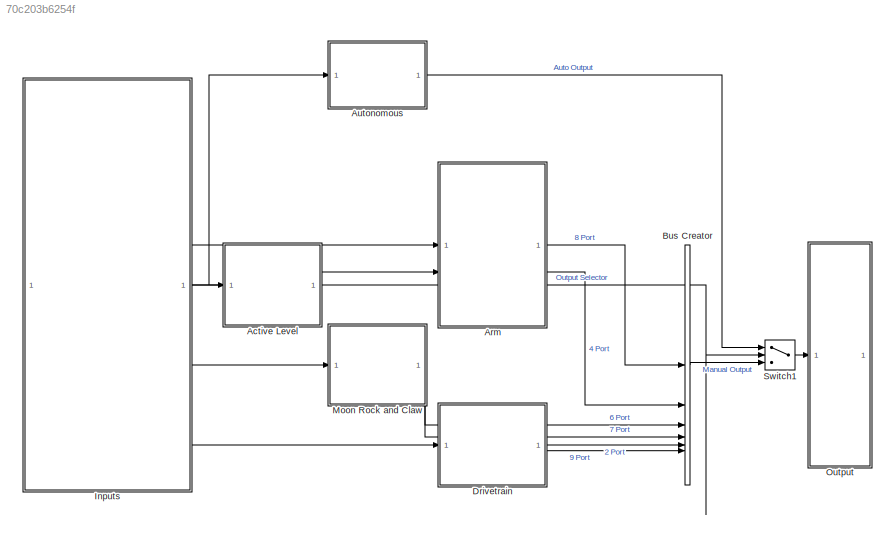
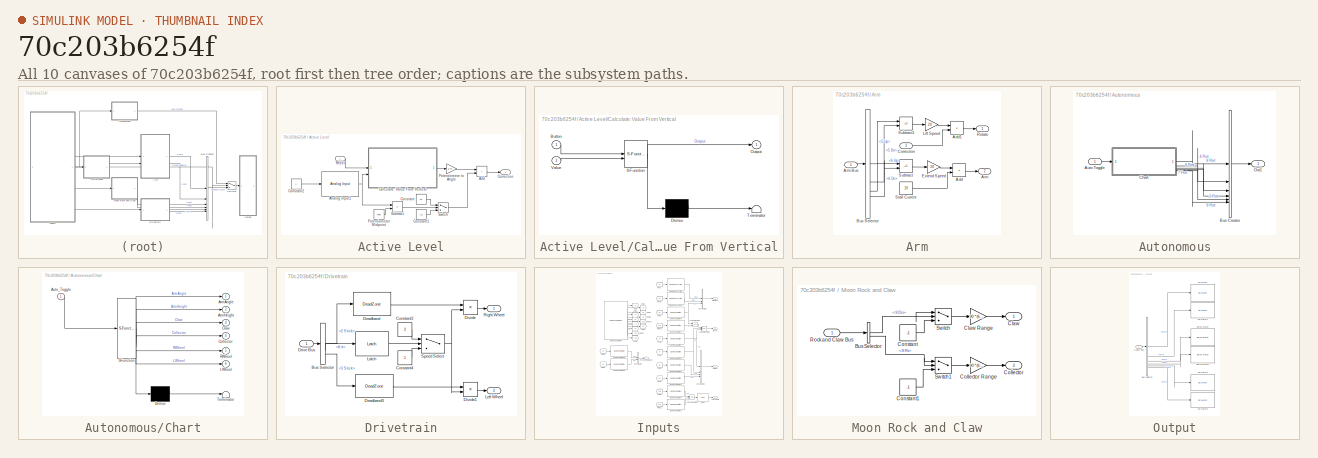
[diagram: thumbnail index - all 10 canvases of the model, root first then tree order]
MODEL slx_70c203b6254f
KIND model
CONFIG AbsTol = auto
CONFIG EnableMultiTasking = off
CONFIG FixedStep = auto
CONFIG MaxStep = auto
CONFIG MinStep = auto
CONFIG RelTol = 1e-3
CONFIG SampleTimeConstraint = Unconstrained
CONFIG SolverName = VariableStepAuto
CONFIG StartTime = 0.0
CONFIG StopTime = 10.0
BLOCK [SubSystem] Active Level
BLOCK [Sum] Active Level/Add
  IconShape = rectangular
BLOCK [Reference] Active Level/Analog Input1  REF=vexarmcortexlib/Sensors/Analog Input
  SourceBlock = vexarmcortexlib/Sensors/Analog Input
  SourceType = Analog Input
BLOCK [SubSystem] Active Level/Calculate: Value From Vertical
  ErrorFcn = Stateflow.Translate.translate
  PermitHierarchicalResolution = ExplicitOnly
  SFBlockType = Chart
  TreatAsAtomicUnit = on
BLOCK [Demux] Active Level/Calculate: Value From Vertical/ Demux 
  Outputs = 1
BLOCK [S-Function] Active Level/Calculate: Value From Vertical/ SFunction 
  EnableBusSupport = on
  FunctionName = sf_sfun
  PortCounts = [2 2]
  SFcnIsStateOwnerBlock = off
  SFunctionDeploymentMode = off
  Tag = Stateflow S-Function 1
BLOCK [Terminator] Active Level/Calculate: Value From Vertical/ Terminator 
BLOCK [Inport] Active Level/Calculate: Value From Vertical/Button
BLOCK [Outport] Active Level/Calculate: Value From Vertical/Output
BLOCK [Inport] Active Level/Calculate: Value From Vertical/Value
  Port = 2
BLOCK [Constant] Active Level/Constant
  Value = 10
BLOCK [Constant] Active Level/Constant1
  Value = -10
BLOCK [Constant] Active Level/Constant2
BLOCK [Outport] Active Level/Correction
BLOCK [Gain] Active Level/Potentiomere to Angle
  Gain = 3/74
BLOCK [Constant] Active Level/Potentiometer Midpoint
  Value = 7400
BLOCK [Inport] Active Level/Reset
BLOCK [Sum] Active Level/Subtract
  IconShape = rectangular
  Inputs = +-
BLOCK [Switch] Active Level/Switch
  Criteria = u2 > Threshold
  InputSameDT = off
  SaturateOnIntegerOverflow = off
BLOCK [SubSystem] Arm
BLOCK [Sum] Arm/Add
  IconShape = rectangular
BLOCK [Sum] Arm/Add1
  IconShape = rectangular
BLOCK [Outport] Arm/Arm
  Port = 2
BLOCK [Inport] Arm/Arm Bus
BLOCK [BusSelector] Arm/Bus Selector
  OutputSignals = 5 Up,5 Dn,6 Up,6 Dn
BLOCK [Inport] Arm/Correction
  Port = 2
BLOCK [Gain] Arm/Extend Speed
  Gain = 20
BLOCK [Gain] Arm/Lift Speed
  Gain = 20
BLOCK [Outport] Arm/Rotate
BLOCK [Constant] Arm/Stall Current
  Value = 10
BLOCK [Sum] Arm/Subtract
  IconShape = rectangular
  Inputs = +-
BLOCK [Sum] Arm/Subtract1
  IconShape = rectangular
  Inputs = +-
BLOCK [SubSystem] Autonomous
BLOCK [Inport] Autonomous/Auto Toggle
BLOCK [BusCreator] Autonomous/Bus Creator
  DisplayOption = bar
  InheritFromInputs = on
  Inputs = 6
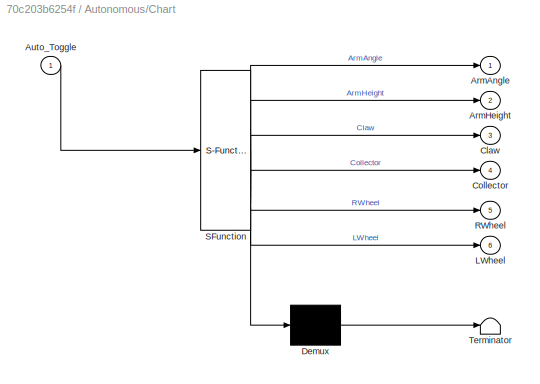
BLOCK [SubSystem] Autonomous/Chart
  ErrorFcn = Stateflow.Translate.translate
  PermitHierarchicalResolution = ExplicitOnly
  SFBlockType = Chart
  TreatAsAtomicUnit = on
BLOCK [Demux] Autonomous/Chart/ Demux 
  Outputs = 1
BLOCK [S-Function] Autonomous/Chart/ SFunction 
  EnableBusSupport = on
  FunctionName = sf_sfun
  PortCounts = [1 7]
  SFcnIsStateOwnerBlock = off
  SFunctionDeploymentMode = off
  Tag = Stateflow S-Function 3
BLOCK [Terminator] Autonomous/Chart/ Terminator 
BLOCK [Outport] Autonomous/Chart/ArmAngle
BLOCK [Outport] Autonomous/Chart/ArmHeight
  Port = 2
BLOCK [Inport] Autonomous/Chart/Auto_Toggle
BLOCK [Outport] Autonomous/Chart/Claw
  Port = 3
BLOCK [Outport] Autonomous/Chart/Collector
  Port = 4
BLOCK [Outport] Autonomous/Chart/LWheel
  Port = 6
BLOCK [Outport] Autonomous/Chart/RWheel
  Port = 5
BLOCK [Outport] Autonomous/Out1
BLOCK [BusCreator] Bus Creator
  DisplayOption = bar
  InheritFromInputs = on
  Inputs = 6
BLOCK [SubSystem] Drivetrain
BLOCK [Inport] Drivetrain/ Drive Bus
BLOCK [BusSelector] Drivetrain/Bus Selector
  OutputSignals = 2 Stick,8 rt,3 Stick
BLOCK [Constant] Drivetrain/Constant3
  Value = 2
BLOCK [Constant] Drivetrain/Constant4
BLOCK [DeadZone] Drivetrain/Deadband
  LowerValue = -9
  UpperValue = 9
BLOCK [DeadZone] Drivetrain/Deadband3
  LowerValue = -9
  UpperValue = 9
BLOCK [Product] Drivetrain/Divide
  Inputs = */
BLOCK [Product] Drivetrain/Divide1
  Inputs = */
BLOCK [Reference] Drivetrain/Latch  REF=vexcommonlib/Latch
  SourceBlock = vexcommonlib/Latch
  SourceType = Latch
BLOCK [Outport] Drivetrain/Left Wheel
  Port = 2
BLOCK [Outport] Drivetrain/Right Wheel
BLOCK [Switch] Drivetrain/Speed Select
  Criteria = u2 > Threshold
  InputSameDT = off
  SaturateOnIntegerOverflow = off
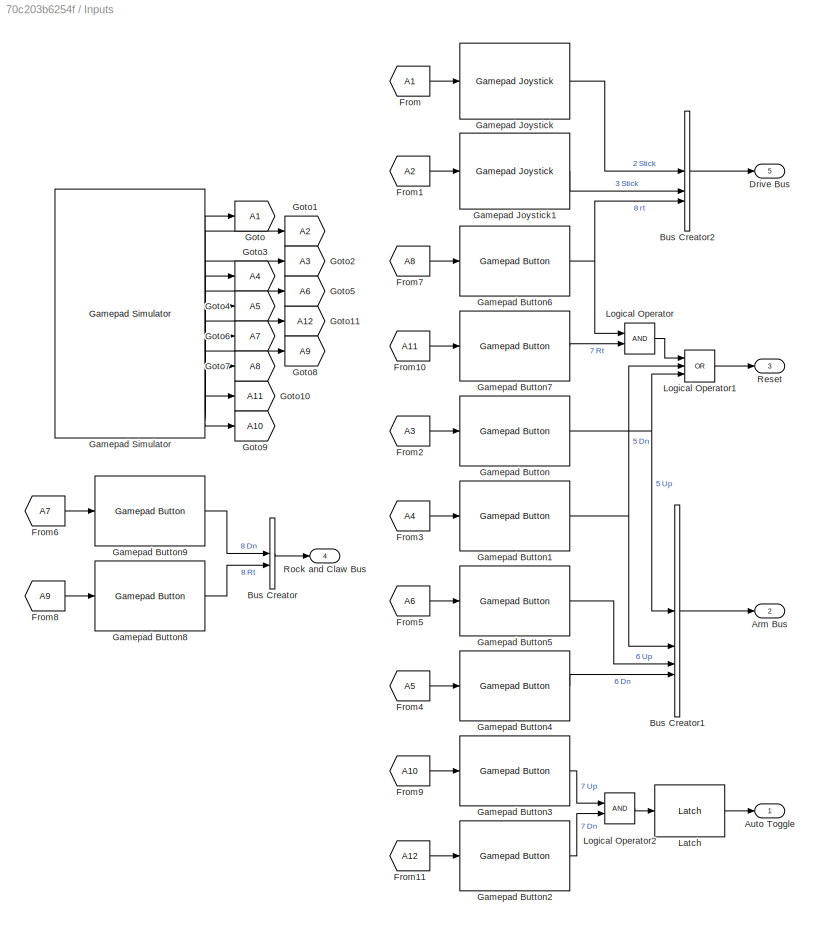
BLOCK [SubSystem] Inputs
BLOCK [Outport] Inputs/ Drive Bus
  Port = 5
BLOCK [Outport] Inputs/Arm Bus
  Port = 2
BLOCK [Outport] Inputs/Auto Toggle
BLOCK [BusCreator] Inputs/Bus Creator
  DisplayOption = bar
  InheritFromInputs = on
  Inputs = 2
BLOCK [BusCreator] Inputs/Bus Creator1
  DisplayOption = bar
  InheritFromInputs = on
  Inputs = 4
BLOCK [BusCreator] Inputs/Bus Creator2
  DisplayOption = bar
  InheritFromInputs = on
  Inputs = 3
BLOCK [From] Inputs/From
  GotoTag = A1
BLOCK [From] Inputs/From1
  GotoTag = A2
BLOCK [From] Inputs/From10
  GotoTag = A11
BLOCK [From] Inputs/From11
  GotoTag = A12
BLOCK [From] Inputs/From2
  GotoTag = A3
BLOCK [From] Inputs/From3
  GotoTag = A4
BLOCK [From] Inputs/From4
  GotoTag = A5
BLOCK [From] Inputs/From5
  GotoTag = A6
BLOCK [From] Inputs/From6
  GotoTag = A7
BLOCK [From] Inputs/From7
  GotoTag = A8
BLOCK [From] Inputs/From8
  GotoTag = A9
BLOCK [From] Inputs/From9
  GotoTag = A10
BLOCK [Reference] Inputs/Gamepad Button  REF=vexarmcortexlib/Gamepad/Gamepad Button
  SourceBlock = vexarmcortexlib/Gamepad/Gamepad Button
  SourceType = Gamepad Button
BLOCK [Reference] Inputs/Gamepad Button1  REF=vexarmcortexlib/Gamepad/Gamepad Button
  SourceBlock = vexarmcortexlib/Gamepad/Gamepad Button
  SourceType = Gamepad Button
BLOCK [Reference] Inputs/Gamepad Button2  REF=vexarmcortexlib/Gamepad/Gamepad Button
  SourceBlock = vexarmcortexlib/Gamepad/Gamepad Button
  SourceType = Gamepad Button
BLOCK [Reference] Inputs/Gamepad Button3  REF=vexarmcortexlib/Gamepad/Gamepad Button
  SourceBlock = vexarmcortexlib/Gamepad/Gamepad Button
  SourceType = Gamepad Button
BLOCK [Reference] Inputs/Gamepad Button4  REF=vexarmcortexlib/Gamepad/Gamepad Button
  SourceBlock = vexarmcortexlib/Gamepad/Gamepad Button
  SourceType = Gamepad Button
BLOCK [Reference] Inputs/Gamepad Button5  REF=vexarmcortexlib/Gamepad/Gamepad Button
  SourceBlock = vexarmcortexlib/Gamepad/Gamepad Button
  SourceType = Gamepad Button
BLOCK [Reference] Inputs/Gamepad Button6  REF=vexarmcortexlib/Gamepad/Gamepad Button
  SourceBlock = vexarmcortexlib/Gamepad/Gamepad Button
  SourceType = Gamepad Button
BLOCK [Reference] Inputs/Gamepad Button7  REF=vexarmcortexlib/Gamepad/Gamepad Button
  SourceBlock = vexarmcortexlib/Gamepad/Gamepad Button
  SourceType = Gamepad Button
BLOCK [Reference] Inputs/Gamepad Button8  REF=vexarmcortexlib/Gamepad/Gamepad Button
  SourceBlock = vexarmcortexlib/Gamepad/Gamepad Button
  SourceType = Gamepad Button
BLOCK [Reference] Inputs/Gamepad Button9  REF=vexarmcortexlib/Gamepad/Gamepad Button
  SourceBlock = vexarmcortexlib/Gamepad/Gamepad Button
  SourceType = Gamepad Button
BLOCK [Reference] Inputs/Gamepad Joystick  REF=vexarmcortexlib/Gamepad/Gamepad Joystick
  SourceBlock = vexarmcortexlib/Gamepad/Gamepad Joystick
  SourceType = Gamepad Joystick
BLOCK [Reference] Inputs/Gamepad Joystick1  REF=vexarmcortexlib/Gamepad/Gamepad Joystick
  SourceBlock = vexarmcortexlib/Gamepad/Gamepad Joystick
  SourceType = Gamepad Joystick
BLOCK [Reference] Inputs/Gamepad Simulator  REF=vexcommonlib/Gamepad Simulator
  LibrarySourceBlock = vexarmcortexlib/Utilities/Gamepad Simulator
  SourceBlock = vexcommonlib/Gamepad Simulator
  SourceType = Gamepad Simulator
BLOCK [Goto] Inputs/Goto
  GotoTag = A1
BLOCK [Goto] Inputs/Goto1
  GotoTag = A2
BLOCK [Goto] Inputs/Goto10
  GotoTag = A11
BLOCK [Goto] Inputs/Goto11
  GotoTag = A12
BLOCK [Goto] Inputs/Goto2
  GotoTag = A3
BLOCK [Goto] Inputs/Goto3
  GotoTag = A4
BLOCK [Goto] Inputs/Goto4
  GotoTag = A5
BLOCK [Goto] Inputs/Goto5
  GotoTag = A6
BLOCK [Goto] Inputs/Goto6
  GotoTag = A7
BLOCK [Goto] Inputs/Goto7
  GotoTag = A8
BLOCK [Goto] Inputs/Goto8
  GotoTag = A9
BLOCK [Goto] Inputs/Goto9
  GotoTag = A10
BLOCK [Reference] Inputs/Latch  REF=vexcommonlib/Latch
  LibrarySourceBlock = vexarmcortexlib/Utilities/Latch
  SourceBlock = vexcommonlib/Latch
  SourceType = Latch
BLOCK [Logic] Inputs/Logical Operator
  AllPortsSameDT = off
  OutDataTypeStr = boolean
BLOCK [Logic] Inputs/Logical Operator1
  AllPortsSameDT = off
  Inputs = 3
  Operator = OR
  OutDataTypeStr = boolean
BLOCK [Logic] Inputs/Logical Operator2
  AllPortsSameDT = off
  OutDataTypeStr = boolean
BLOCK [Outport] Inputs/Reset
  Port = 3
BLOCK [Outport] Inputs/Rock and Claw Bus
  Port = 4
BLOCK [SubSystem] Moon Rock and Claw
BLOCK [BusSelector] Moon Rock and Claw/Bus Selector
  OutputSignals = 8 Dn,8 Rt
BLOCK [Outport] Moon Rock and Claw/Claw
BLOCK [Gain] Moon Rock and Claw/Claw Range
  Gain = 90 * (60/127)
BLOCK [Outport] Moon Rock and Claw/Collector
  Port = 2
BLOCK [Gain] Moon Rock and Claw/Collector Range
  Gain = 90 * (60/127)
BLOCK [Constant] Moon Rock and Claw/Constant
  Value = -1
BLOCK [Constant] Moon Rock and Claw/Constant1
  Value = -1
BLOCK [Inport] Moon Rock and Claw/Rock and Claw Bus
BLOCK [Switch] Moon Rock and Claw/Switch
  Criteria = u2 ~= 0
  InputSameDT = off
  SaturateOnIntegerOverflow = off
BLOCK [Switch] Moon Rock and Claw/Switch1
  Criteria = u2 ~= 0
  InputSameDT = off
  SaturateOnIntegerOverflow = off
BLOCK [SubSystem] Output
BLOCK [BusSelector] Output/Bus Selector
  OutputSignals = 8 Port,4 Port,6 Port,7 Port,2 Port,9 Port
BLOCK [Reference] Output/DC Motor  REF=vexarmcortexlib/Actuators/DC Motor
  SourceBlock = vexarmcortexlib/Actuators/DC Motor
  SourceType = DC Motor
BLOCK [Reference] Output/DC Motor1  REF=vexarmcortexlib/Actuators/DC Motor
  SourceBlock = vexarmcortexlib/Actuators/DC Motor
  SourceType = DC Motor
BLOCK [Reference] Output/DC Motor2  REF=vexarmcortexlib/Actuators/DC Motor
  SourceBlock = vexarmcortexlib/Actuators/DC Motor
  SourceType = DC Motor
BLOCK [Reference] Output/DC Motor3  REF=vexarmcortexlib/Actuators/DC Motor
  SourceBlock = vexarmcortexlib/Actuators/DC Motor
  SourceType = DC Motor
BLOCK [Inport] Output/Ouput Bus
BLOCK [Reference] Output/Servo Motor  REF=vexarmcortexlib/Actuators/Servo Motor
  SourceBlock = vexarmcortexlib/Actuators/Servo Motor
  SourceType = Servo Motor
BLOCK [Reference] Output/Servo Motor1  REF=vexarmcortexlib/Actuators/Servo Motor
  SourceBlock = vexarmcortexlib/Actuators/Servo Motor
  SourceType = Servo Motor
BLOCK [Switch] Switch1
  Criteria = u2 > Threshold
  InputSameDT = off
  SaturateOnIntegerOverflow = off
LINE Active Level/Add:1 -> Active Level/Correction:1
NET Active Level/Analog Input1:1 -> Active Level/Calculate: Value From Vertical:2, Active Level/Subtract:1
LINE Active Level/Calculate: Value From Vertical:1 -> Active Level/Potentiomere to Angle:1
LINE Active Level/Constant1:1 -> Active Level/Switch:3
LINE Active Level/Constant2:1 -> Active Level/Analog Input1:1
LINE Active Level/Constant:1 -> Active Level/Switch:1
LINE Active Level/Potentiomere to Angle:1 -> Active Level/Add:1
LINE Active Level/Potentiometer Midpoint:1 -> Active Level/Subtract:2
LINE Active Level/Reset:1 -> Active Level/Calculate: Value From Vertical:1
LINE Active Level/Subtract:1 -> Active Level/Switch:2
LINE Active Level/Switch:1 -> Active Level/Add:2
LINE Active Level:1 -> Arm:2
LINE Arm/Add1:1 -> Arm/Rotate:1
LINE Arm/Add:1 -> Arm/Arm:1
LINE Arm/Arm Bus:1 -> Arm/Bus Selector:1
LINE Arm/Bus Selector:1 -> Arm/Subtract1:1
LINE Arm/Bus Selector:2 -> Arm/Subtract1:2
LINE Arm/Bus Selector:3 -> Arm/Subtract:1
LINE Arm/Bus Selector:4 -> Arm/Subtract:2
LINE Arm/Correction:1 -> Arm/Add1:2
LINE Arm/Extend Speed:1 -> Arm/Add:1
LINE Arm/Lift Speed:1 -> Arm/Add1:1
LINE Arm/Stall Current:1 -> Arm/Add:2
LINE Arm/Subtract1:1 -> Arm/Lift Speed:1
LINE Arm/Subtract:1 -> Arm/Extend Speed:1
LINE Arm:1 -> Bus Creator:1
LINE Arm:2 -> Bus Creator:2
LINE Autonomous/Auto Toggle:1 -> Autonomous/Chart:1
LINE Autonomous/Bus Creator:1 -> Autonomous/Out1:1
LINE Autonomous/Chart:1 -> Autonomous/Bus Creator:1
LINE Autonomous/Chart:2 -> Autonomous/Bus Creator:2
LINE Autonomous/Chart:3 -> Autonomous/Bus Creator:3
LINE Autonomous/Chart:4 -> Autonomous/Bus Creator:4
LINE Autonomous/Chart:5 -> Autonomous/Bus Creator:5
LINE Autonomous/Chart:6 -> Autonomous/Bus Creator:6
LINE Autonomous:1 -> Switch1:1
LINE Bus Creator:1 -> Switch1:3
LINE Drivetrain/ Drive Bus:1 -> Drivetrain/Bus Selector:1
LINE Drivetrain/Bus Selector:1 -> Drivetrain/Deadband:1
LINE Drivetrain/Bus Selector:2 -> Drivetrain/Latch:1
LINE Drivetrain/Bus Selector:3 -> Drivetrain/Deadband3:1
LINE Drivetrain/Constant3:1 -> Drivetrain/Speed Select:1
LINE Drivetrain/Constant4:1 -> Drivetrain/Speed Select:3
LINE Drivetrain/Deadband3:1 -> Drivetrain/Divide1:1
LINE Drivetrain/Deadband:1 -> Drivetrain/Divide:1
LINE Drivetrain/Divide1:1 -> Drivetrain/Left Wheel:1
LINE Drivetrain/Divide:1 -> Drivetrain/Right Wheel:1
LINE Drivetrain/Latch:1 -> Drivetrain/Speed Select:2
NET Drivetrain/Speed Select:1 -> Drivetrain/Divide1:2, Drivetrain/Divide:2
LINE Drivetrain:1 -> Bus Creator:5
LINE Drivetrain:2 -> Bus Creator:6
LINE Inputs/Bus Creator1:1 -> Inputs/Arm Bus:1
LINE Inputs/Bus Creator2:1 -> Inputs/ Drive Bus:1
LINE Inputs/Bus Creator:1 -> Inputs/Rock and Claw Bus:1
LINE Inputs/From10:1 -> Inputs/Gamepad Button7:1
LINE Inputs/From11:1 -> Inputs/Gamepad Button2:1
LINE Inputs/From1:1 -> Inputs/Gamepad Joystick1:1
LINE Inputs/From2:1 -> Inputs/Gamepad Button:1
LINE Inputs/From3:1 -> Inputs/Gamepad Button1:1
LINE Inputs/From4:1 -> Inputs/Gamepad Button4:1
LINE Inputs/From5:1 -> Inputs/Gamepad Button5:1
LINE Inputs/From6:1 -> Inputs/Gamepad Button9:1
LINE Inputs/From7:1 -> Inputs/Gamepad Button6:1
LINE Inputs/From8:1 -> Inputs/Gamepad Button8:1
LINE Inputs/From9:1 -> Inputs/Gamepad Button3:1
LINE Inputs/From:1 -> Inputs/Gamepad Joystick:1
NET Inputs/Gamepad Button1:1 -> Inputs/Bus Creator1:2, Inputs/Logical Operator1:2
LINE Inputs/Gamepad Button2:1 -> Inputs/Logical Operator2:2
LINE Inputs/Gamepad Button3:1 -> Inputs/Logical Operator2:1
LINE Inputs/Gamepad Button4:1 -> Inputs/Bus Creator1:4
LINE Inputs/Gamepad Button5:1 -> Inputs/Bus Creator1:3
NET Inputs/Gamepad Button6:1 -> Inputs/Bus Creator2:3, Inputs/Logical Operator:1
LINE Inputs/Gamepad Button7:1 -> Inputs/Logical Operator:2
LINE Inputs/Gamepad Button8:1 -> Inputs/Bus Creator:2
LINE Inputs/Gamepad Button9:1 -> Inputs/Bus Creator:1
NET Inputs/Gamepad Button:1 -> Inputs/Bus Creator1:1, Inputs/Logical Operator1:3
LINE Inputs/Gamepad Joystick1:1 -> Inputs/Bus Creator2:2
LINE Inputs/Gamepad Joystick:1 -> Inputs/Bus Creator2:1
LINE Inputs/Gamepad Simulator:10 -> Inputs/Goto6:1
LINE Inputs/Gamepad Simulator:11 -> Inputs/Goto8:1
LINE Inputs/Gamepad Simulator:12 -> Inputs/Goto7:1
LINE Inputs/Gamepad Simulator:14 -> Inputs/Goto10:1
LINE Inputs/Gamepad Simulator:16 -> Inputs/Goto9:1
LINE Inputs/Gamepad Simulator:2 -> Inputs/Goto:1
LINE Inputs/Gamepad Simulator:3 -> Inputs/Goto1:1
LINE Inputs/Gamepad Simulator:5 -> Inputs/Goto2:1
LINE Inputs/Gamepad Simulator:6 -> Inputs/Goto3:1
LINE Inputs/Gamepad Simulator:7 -> Inputs/Goto5:1
LINE Inputs/Gamepad Simulator:8 -> Inputs/Goto4:1
LINE Inputs/Gamepad Simulator:9 -> Inputs/Goto11:1
LINE Inputs/Latch:1 -> Inputs/Auto Toggle:1
LINE Inputs/Logical Operator1:1 -> Inputs/Reset:1
LINE Inputs/Logical Operator2:1 -> Inputs/Latch:1
LINE Inputs/Logical Operator:1 -> Inputs/Logical Operator1:1
NET Inputs:1 -> Autonomous:1, Switch1:2
LINE Inputs:2 -> Arm:1
LINE Inputs:3 -> Active Level:1
LINE Inputs:4 -> Moon Rock and Claw:1
LINE Inputs:5 -> Drivetrain:1
NET Moon Rock and Claw/Bus Selector:1 -> Moon Rock and Claw/Switch:1, Moon Rock and Claw/Switch:2
NET Moon Rock and Claw/Bus Selector:2 -> Moon Rock and Claw/Switch1:1, Moon Rock and Claw/Switch1:2
LINE Moon Rock and Claw/Claw Range:1 -> Moon Rock and Claw/Claw:1
LINE Moon Rock and Claw/Collector Range:1 -> Moon Rock and Claw/Collector:1
LINE Moon Rock and Claw/Constant1:1 -> Moon Rock and Claw/Switch1:3
LINE Moon Rock and Claw/Constant:1 -> Moon Rock and Claw/Switch:3
LINE Moon Rock and Claw/Rock and Claw Bus:1 -> Moon Rock and Claw/Bus Selector:1
LINE Moon Rock and Claw/Switch1:1 -> Moon Rock and Claw/Collector Range:1
LINE Moon Rock and Claw/Switch:1 -> Moon Rock and Claw/Claw Range:1
LINE Moon Rock and Claw:1 -> Bus Creator:3
LINE Moon Rock and Claw:2 -> Bus Creator:4
LINE Output/Bus Selector:1 -> Output/DC Motor:1
LINE Output/Bus Selector:2 -> Output/DC Motor1:1
LINE Output/Bus Selector:3 -> Output/Servo Motor:1
LINE Output/Bus Selector:4 -> Output/Servo Motor1:1
LINE Output/Bus Selector:5 -> Output/DC Motor2:1
LINE Output/Bus Selector:6 -> Output/DC Motor3:1
LINE Output/Ouput Bus:1 -> Output/Bus Selector:1
LINE Switch1:1 -> Output:1
note: NET lines group one-source signal fan-out (src -> all destinations, sorted); 1:1 wires keep LINE
CHART Active Level/Calculate: Value From Vertical states=2 transitions=3
  STATE_LABEL 'Calculate\nOutput = Value - Stored;'
  STATE_LABEL 'Start\nStored = Value;\nOutput = 0;'
CHART Autonomous/Chart states=4 transitions=5
  STATE_LABEL 'Off\nLWheel = 0;\nRWheel = 0;\nClaw = -90;\nCollector = 0;\nArmHeight = 0;\nArmAngle = 0;\n'
  STATE_LABEL 'Approach\nLWheel = 50\nRWheel = 50'
  STATE_LABEL 'Grab\nLWheel = 0;\nRWheel = 0;\nClaw = 90;'
  STATE_LABEL 'Reverse\nLWheel = -50;\nRWheel = -50;'
CHART  states=0 transitions=0
CHART  states=0 transitions=0
